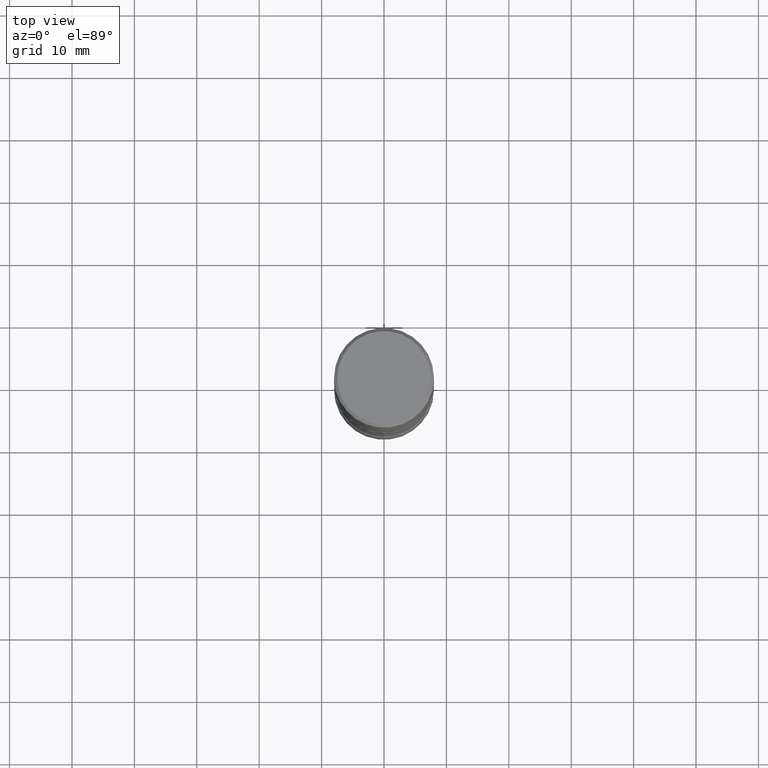
[diagram: clean part render]
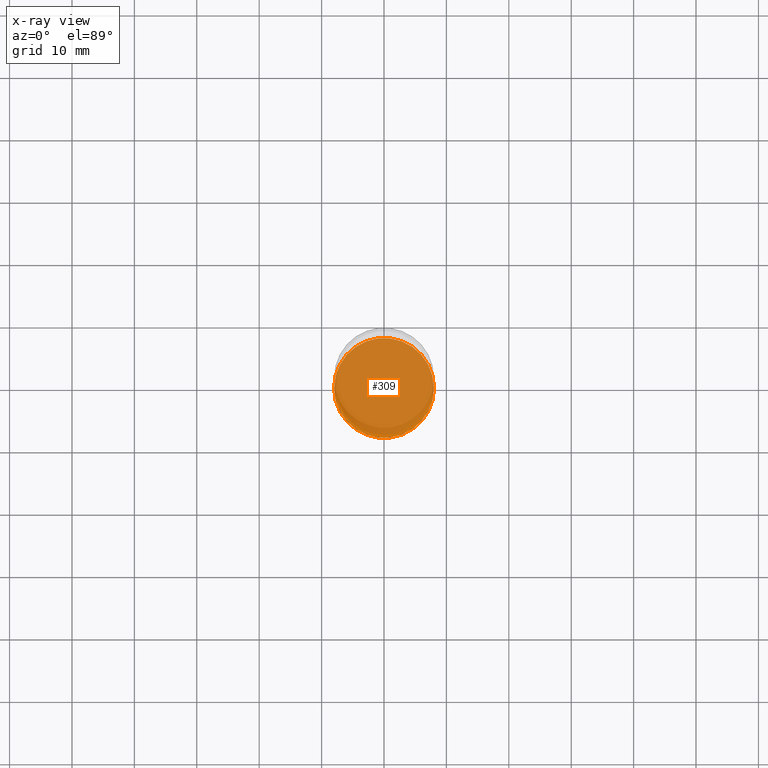
[diagram: x-ray — body ghosted, one internal face saturated and labeled with its STEP entity id]
A machine part, top view, then the same camera in x-ray: the body is ghosted and one INTERNAL B-rep face — a face not visible from any outside direction — is saturated and labeled: STEP entity #309.
In plain terms, the highlighted planar face has unit normal (0, -0, -1).
Its self-contained STEP definition (entity closure, byte-faithful):
#22 = AXIS2_PLACEMENT_3D ( 'NONE', #374, #105, #534 ) ;
#52 = DIRECTION ( 'NONE',  ( -2.445468806185136597E-29, 3.491481338843145583E-15, 1.000000000000000000 ) ) ;
#75 = PLANE ( 'NONE',  #527 ) ;
#88 = CIRCLE ( 'NONE', #22, 0.3149500000000002298 ) ;
#95 = AXIS2_PLACEMENT_3D ( 'NONE', #277, #52, #314 ) ;
#105 = DIRECTION ( 'NONE',  ( -2.445468806185136597E-29, 3.491481338843145583E-15, 1.000000000000000000 ) ) ;
#112 = DIRECTION ( 'NONE',  ( -1.000000000000000000, 6.982962677686265922E-15, -4.876176775795935793E-29 ) ) ;
#132 = VERTEX_POINT ( 'NONE', #153 ) ;
#153 = CARTESIAN_POINT ( 'NONE',  ( -0.3149500000000002298, -1.192062620493334568E-14, -3.740200000000000191 ) ) ;
#162 = FACE_OUTER_BOUND ( 'NONE', #505, .T. ) ;
#170 = ORIENTED_EDGE ( 'NONE', *, *, #404, .T. ) ;
#185 = EDGE_CURVE ( 'NONE', #132, #293, #437, .T. ) ;
#207 = CARTESIAN_POINT ( 'NONE',  ( 0.3149500000000002298, -1.525812259887842581E-14, -3.740200000000000191 ) ) ;
#244 = CARTESIAN_POINT ( 'NONE',  ( 9.146542428893648262E-29, -1.305883850354113437E-14, -3.740200000000000191 ) ) ;
#277 = CARTESIAN_POINT ( 'NONE',  ( 9.146542428893648262E-29, -1.305883850354113437E-14, -3.740200000000000191 ) ) ;
#293 = VERTEX_POINT ( 'NONE', #207 ) ;
#309 = ADVANCED_FACE ( 'NONE', ( #162 ), #75, .F. ) ;
#314 = DIRECTION ( 'NONE',  ( 1.000000000000000000, -6.982962677686264344E-15, 0.000000000000000000 ) ) ;
#328 = DIRECTION ( 'NONE',  ( 2.438088387897960049E-29, -3.491481338843145188E-15, -1.000000000000000000 ) ) ;
#374 = CARTESIAN_POINT ( 'NONE',  ( 9.146542428893648262E-29, -1.305883850354113437E-14, -3.740200000000000191 ) ) ;
#404 = EDGE_CURVE ( 'NONE', #293, #132, #88, .T. ) ;
#433 = ORIENTED_EDGE ( 'NONE', *, *, #185, .T. ) ;
#437 = CIRCLE ( 'NONE', #95, 0.3149500000000002298 ) ;
#505 = EDGE_LOOP ( 'NONE', ( #170, #433 ) ) ;
#527 = AXIS2_PLACEMENT_3D ( 'NONE', #244, #328, #112 ) ;
#534 = DIRECTION ( 'NONE',  ( 1.000000000000000000, -6.982962677686264344E-15, 0.000000000000000000 ) ) ;